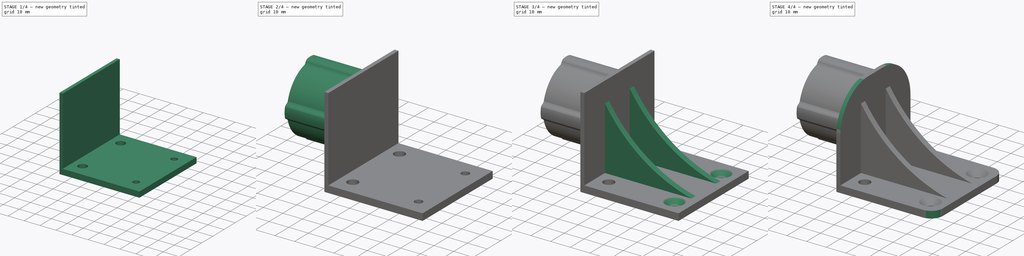
[diagram: build sequence overview — one tinted view per stage of 4, left to right]
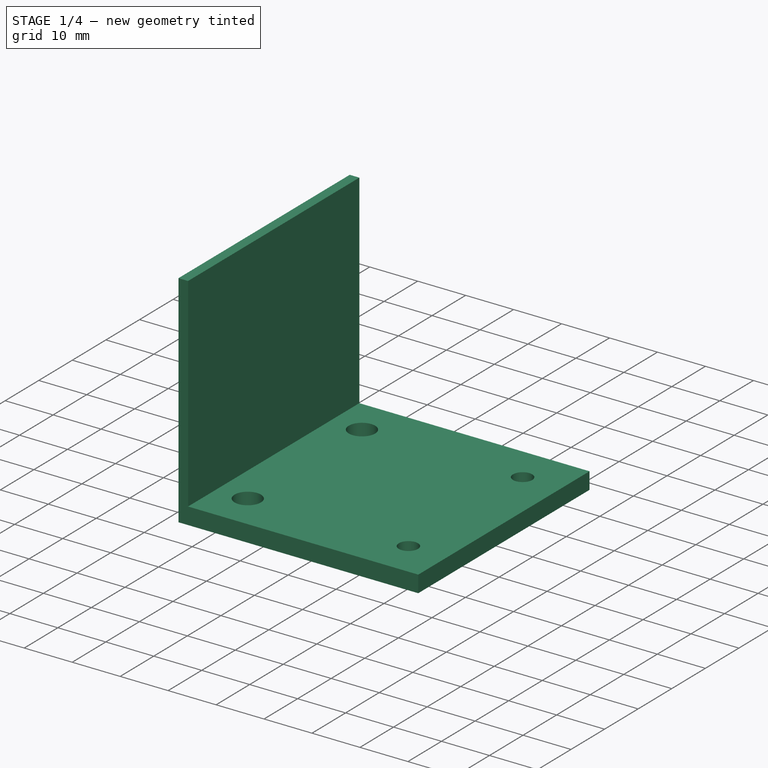
[diagram: stage 1 of 4 — iso view after this stage's code; geometry added in this stage tinted green]
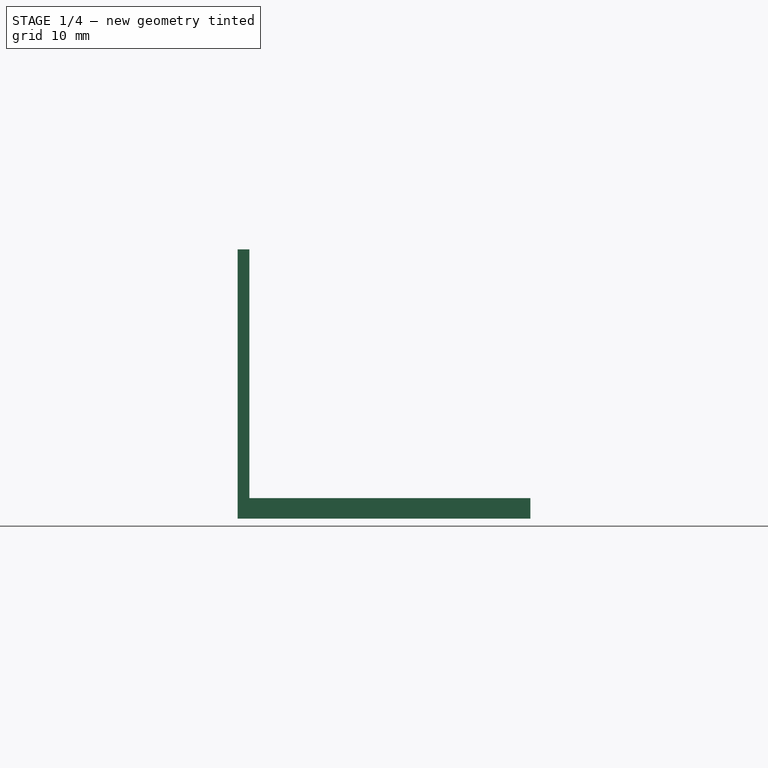
[diagram: stage 1 of 4 — front view after this stage's code; geometry added in this stage tinted green]
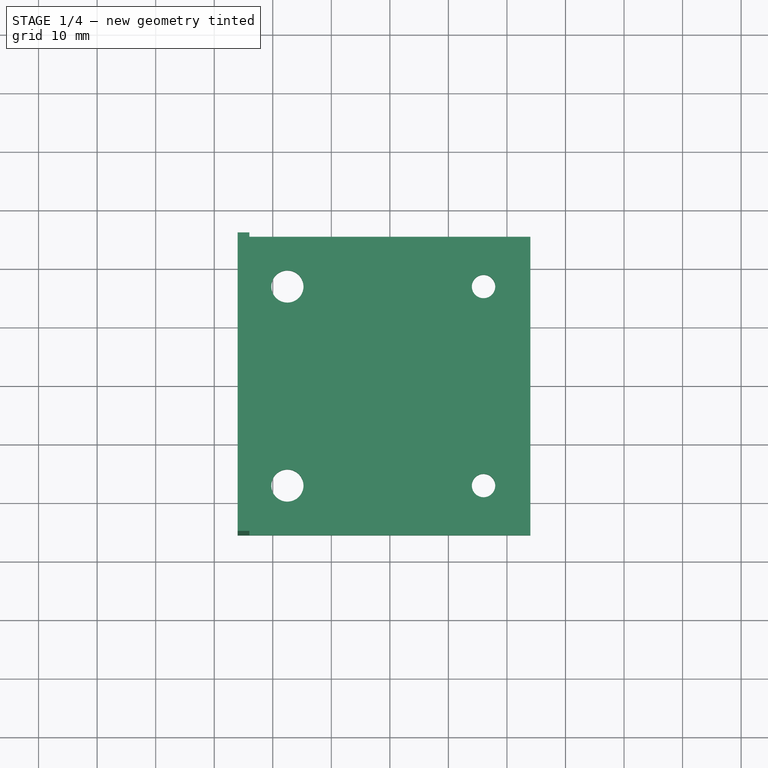
[diagram: stage 1 of 4 — top view after this stage's code; geometry added in this stage tinted green]
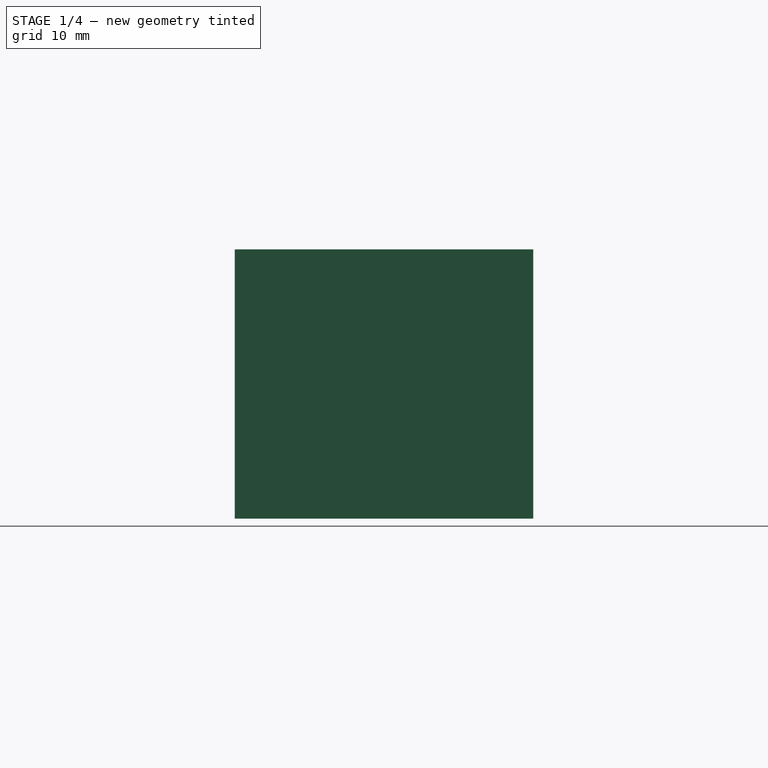
[diagram: stage 1 of 4 — right view after this stage's code; geometry added in this stage tinted green]
FCSTD DOCUMENT  (FreeCAD 0.21RUnknown)
Label: part5.2
License: All rights reserved
LicenseURL: https://en.wikipedia.org/wiki/All_rights_reserved
objects: App::MeasureDistance×6, Sketcher::SketchObject×4, PartDesign::Pad×4, Image::ImagePlane×3, PartDesign::Fillet×2, PartDesign::PolarPattern×1, PartDesign::Mirrored×1, PartDesign::Chamfer×1, PartDesign::Body×1
note: 21 computed .brp shape members not serialized (recipe doc carries the construction recipe); baked Part::Feature solids carry a one-line shape summary decoded from their .brp

FEATURE [Image::ImagePlane] Top
  Placement = pos=(-25.4,0.3,24.1) rot=(0.57735,-0.57735,-0.57735;2.0944rad)
  XSize = 142.346
  YSize = 94.5265
FEATURE [Image::ImagePlane] Base
  Placement = pos=(1.5,0,0.1) rot=(0,0,1;0.05236rad)
  XSize = 172.092
  YSize = 114.282
FEATURE [App::MeasureDistance] Distance  label="Distance: 47.43 mm"
  Distance = 47.4342
  P1 = (-24.0077,27.0864,0)
  P2 = (23.3693,24.7564,0)
FEATURE [Image::ImagePlane] side
  Placement = pos=(-44.4,5.3e-15,24) rot=(0,0.707107,0.707107;3.14159rad)
  XSize = 173.07
  YSize = 114.23
FEATURE [Sketcher::SketchObject] Sketch001
  FullyConstrained = true
  MapMode = 5
  Support = -> [XY_Plane]
  sketch-geometry (8):
    g0: LineSegment StartX=-24 StartY=25.5 StartZ=0 EndX=24 EndY=25.5 EndZ=0
    g1: LineSegment StartX=24 StartY=25.5 StartZ=0 EndX=24 EndY=-25.5 EndZ=0
    g2: LineSegment StartX=24 StartY=-25.5 StartZ=0 EndX=-24 EndY=-25.5 EndZ=0
    g3: LineSegment StartX=-24 StartY=-25.5 StartZ=0 EndX=-24 EndY=25.5 EndZ=0
    g4: Circle CenterX=-17.5 CenterY=17 CenterZ=0 NormalX=0 NormalY=0 NormalZ=1 AngleXU=0 Radius=2.75
    g5: Circle CenterX=16 CenterY=17 CenterZ=0 NormalX=0 NormalY=0 NormalZ=1 AngleXU=0 Radius=2
    g6: Circle CenterX=-17.5 CenterY=-17 CenterZ=0 NormalX=0 NormalY=0 NormalZ=1 AngleXU=0 Radius=2.75
    g7: Circle CenterX=16 CenterY=-17 CenterZ=0 NormalX=0 NormalY=0 NormalZ=1 AngleXU=0 Radius=2
  constraints (23):
    c: Coincident(g0,g1)
    c: Coincident(g1,g2)
    c: Coincident(g2,g3)
    c: Coincident(g3,g0)
    c: Horizontal(g0)
    c: Horizontal(g2)
    c: Vertical(g1)
    c: Vertical(g3)
    c: DistanceX(g0,g0) = 48
    c: DistanceY(g1,g1) = 51
    c: Symmetric(g2,g0,g-1)
    c: Horizontal(g5,g4)
    c: Diameter(g5) = 4
    c: Diameter(g4) = 5.5
    c: Diameter(g7) = 4
    c: Diameter(g6) = 5.5
    c: Horizontal(g6,g7)
    c: Vertical(g4,g6)
    c: Vertical(g5,g7)
    c: DistanceY(g4,g0) = 8.5
    c: DistanceX(g7,g1) = 8
    c: DistanceX(g0,g4) = 6.5
    c: DistanceY(g1,g7) = 8.5
FEATURE [App::MeasureDistance] Distance001  label="Distance: 1.87 mm"
  Distance = 1.87109
  P1 = (-24.8381,1.23957e-06,13.6017)
  P2 = (-26.7075,1.22989e-06,13.683)
FEATURE [App::MeasureDistance] Distance002  label="Distance: 3.66 mm"
  Distance = 3.65989
  P1 = (-22.6962,2.96178e-06,-0.845215)
  P2 = (-22.5607,2.52579e-06,2.81216)
FEATURE [App::MeasureDistance] Distance003  label="Distance: 45.27 mm"
  Distance = 45.2652
  P1 = (-26.3729,2.97323e-06,-0.941296)
  P2 = (-27.0504,-2.4222e-06,44.3189)
FEATURE [App::MeasureDistance] Distance004  label="Distance: 25.81 mm"
  Distance = 25.8146
  P1 = (-52.9513,-2.16964e-07,25.82)
  P2 = (-27.1368,-2.08887e-07,25.7523)
FEATURE [PartDesign::Pad] Pad
  Direction = (0,0,1)
  Length = 3.5
  Length2 = 10
  Profile = -> Sketch001
  ReferenceAxis = -> Sketch001 [N_Axis]
  Type = 0
FEATURE [Sketcher::SketchObject] Sketch002
  ExternalGeometry = -> [Pad]
  FullyConstrained = true
  MapMode = 5
  Placement = pos=(-24,0,0) rot=(0.57735,-0.57735,-0.57735;2.0944rad)
  Support = -> [Pad]
  sketch-geometry (4):
    g0: LineSegment StartX=-25.5 StartY=0 StartZ=0 EndX=25.5 EndY=0 EndZ=0
    g1: LineSegment StartX=25.5 StartY=0 StartZ=0 EndX=25.5 EndY=46 EndZ=0
    g2: LineSegment StartX=25.5 StartY=46 StartZ=0 EndX=-25.5 EndY=46 EndZ=0
    g3: LineSegment StartX=-25.5 StartY=46 StartZ=0 EndX=-25.5 EndY=0 EndZ=0
  constraints (10):
    c: Coincident(g0,g1)
    c: Coincident(g1,g2)
    c: Coincident(g2,g3)
    c: Coincident(g3,g0)
    c: Horizontal(g2)
    c: Vertical(g1)
    c: Vertical(g3)
    c: Coincident(g0,g-4)
    c: Coincident(g0,g-3)
    c: DistanceY(g1,g1) = 46
FEATURE [PartDesign::Pad] Pad001
  BaseFeature = -> Pad
  Direction = (-1,0,0)
  Length = 2
  Length2 = 10
  Profile = -> Sketch002
  ReferenceAxis = -> Sketch002 [N_Axis]
  Type = 0
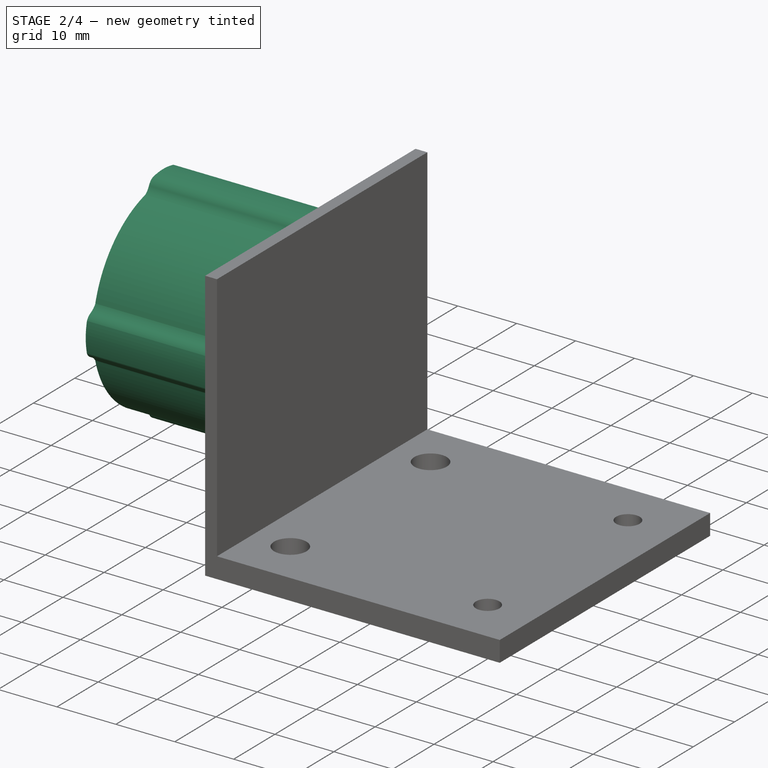
[diagram: stage 2 of 4 — iso view after this stage's code; geometry added in this stage tinted green]
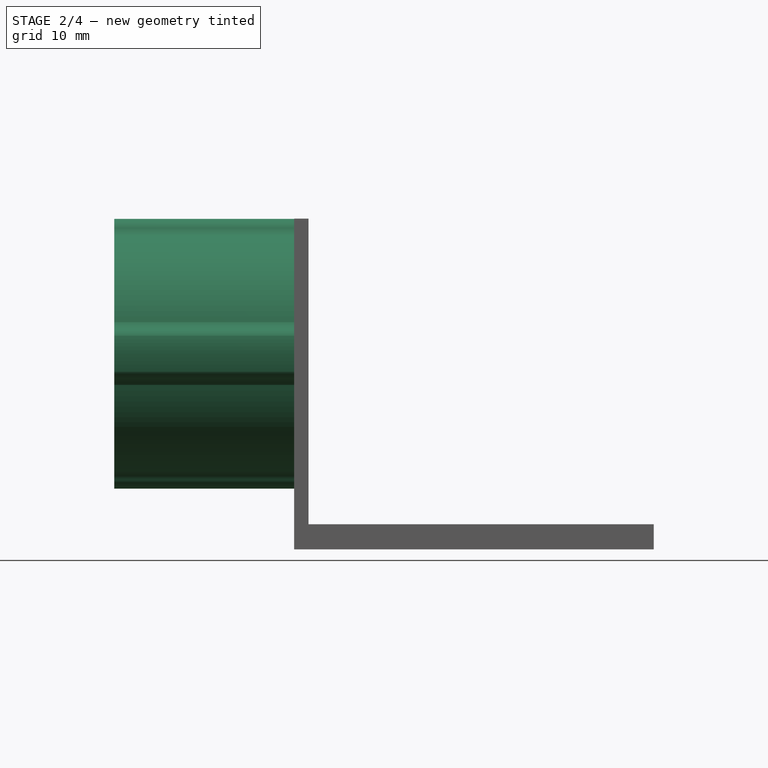
[diagram: stage 2 of 4 — front view after this stage's code; geometry added in this stage tinted green]
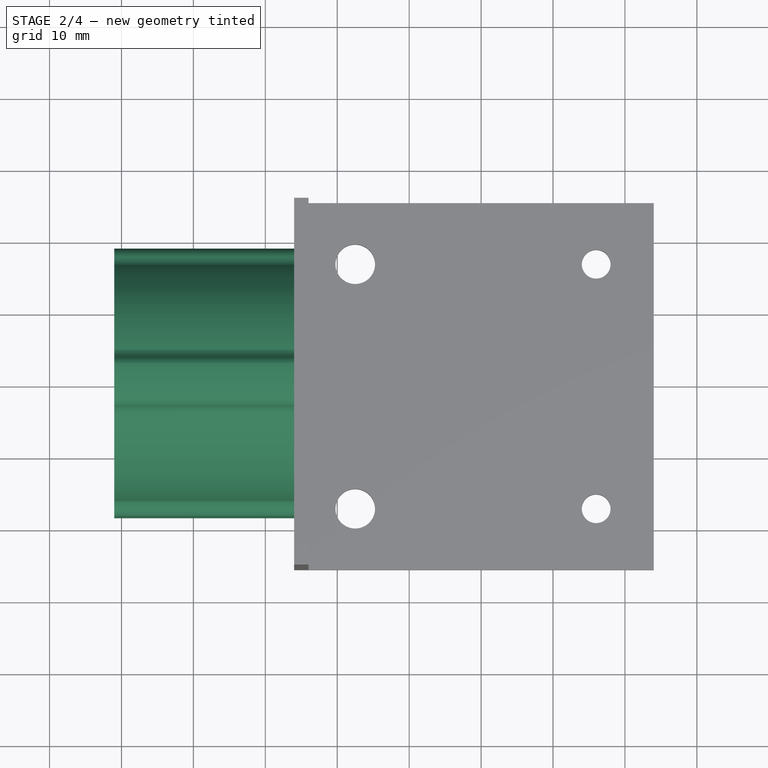
[diagram: stage 2 of 4 — top view after this stage's code; geometry added in this stage tinted green]
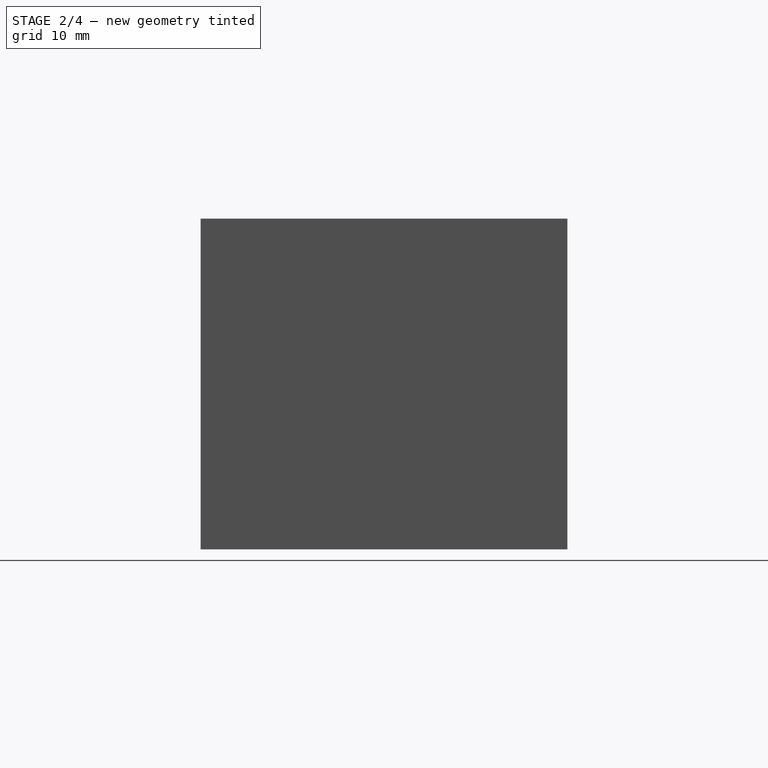
[diagram: stage 2 of 4 — right view after this stage's code; geometry added in this stage tinted green]
FEATURE [Sketcher::SketchObject] Sketch
  AttachmentOffset = pos=(0,27.2,0) rot=(0,0,1;0rad)
  FullyConstrained = true
  MapMode = 5
  Placement = pos=(-26,0,27.2) rot=(0.57735,-0.57735,-0.57735;2.0944rad)
  Support = -> [Pad001]
  sketch-geometry (15):
    g0: LineSegment StartX=0 StartY=0 StartZ=0 EndX=-4.39519 EndY=16.4031 EndZ=0
    g1: LineSegment StartX=0 StartY=0 StartZ=0 EndX=16.4207 EndY=4.39992 EndZ=0
    g2: ArcOfCircle CenterX=0 CenterY=0 CenterZ=0 NormalX=0 NormalY=0 NormalZ=1 AngleXU=0 Radius=17 StartAngle=0.261799 EndAngle=1.3125
    g3: ArcOfCircle CenterX=0 CenterY=0 CenterZ=0 NormalX=0 NormalY=0 NormalZ=1 AngleXU=0 Radius=15 StartAngle=0.261799 EndAngle=1.46393
    g4: LineSegment StartX=-4.39519 StartY=16.4031 StartZ=0 EndX=-3.88229 EndY=14.4889 EndZ=0
    g5: LineSegment StartX=16.4207 StartY=4.39992 StartZ=0 EndX=14.4889 EndY=3.88229 EndZ=0
    g6: ArcOfCircle CenterX=-5.69269 CenterY=18.54 CenterZ=0 NormalX=0 NormalY=0 NormalZ=1 AngleXU=0 Radius=2.5 StartAngle=5.25807 EndAngle=5.85444
    g7: ArcOfCircle CenterX=-1.6 CenterY=16.6692 CenterZ=0 NormalX=0 NormalY=0 NormalZ=1 AngleXU=0 Radius=2 StartAngle=2.03756 EndAngle=2.71284
    g8: ArcOfCircle CenterX=-3.1e-15 CenterY=8 CenterZ=0 NormalX=0 NormalY=0 NormalZ=1 AngleXU=0 Radius=10.75 StartAngle=1.33609 EndAngle=1.8055
    g9: ArcOfCircle CenterX=1.6 CenterY=16.6692 CenterZ=0 NormalX=0 NormalY=0 NormalZ=1 AngleXU=0 Radius=2 StartAngle=0.428748 EndAngle=1.10403
    g10: ArcOfCircle CenterX=5.69269 CenterY=18.54 CenterZ=0 NormalX=0 NormalY=0 NormalZ=1 AngleXU=0 Radius=2.5 StartAngle=3.57034 EndAngle=4.14179
    g11: LineSegment StartX=-1.6 StartY=16.9245 StartZ=0 EndX=-1.6 EndY=14.9144 EndZ=0
    g12: LineSegment StartX=1.6 StartY=16.9245 StartZ=0 EndX=1.6 EndY=14.9144 EndZ=0
    g13: ArcOfCircle CenterX=0 CenterY=0 CenterZ=0 NormalX=0 NormalY=0 NormalZ=1 AngleXU=0 Radius=15 StartAngle=1.67767 EndAngle=1.8326
    g14: ArcOfCircle CenterX=0 CenterY=0 CenterZ=0 NormalX=0 NormalY=0 NormalZ=1 AngleXU=0 Radius=17 StartAngle=1.47654 EndAngle=1.66505
  constraints (43):
    c: Coincident(g0,g-1)
    c: Coincident(g1,g0)
    c: Angle(g1,g0) = 1.5708
    c: Coincident(g2,g0)
    c: Coincident(g2,g1)
    c: PointOnObject(g13,g0)
    c: PointOnObject(g3,g1)
    c: Coincident(g4,g0)
    c: Coincident(g4,g13)
    c: Coincident(g5,g2)
    c: Coincident(g5,g3)
    c: Radius(g2) = 17
    c: Radius(g3) = 15
    c: Angle(g-1,g1) = 0.261799
    c: Coincident(g3,g2)
    c: Coincident(g6,g0)
    c: Coincident(g8,g7)
    c: Coincident(g9,g8)
    c: Tangent(g7,g6) = 1.5708
    c: Tangent(g10,g9) = 1.5708
    c: DistanceY(g2,g8) = 8
    c: Symmetric(g7,g8,g-2)
    c: Symmetric(g9,g7,g-2)
    c: Symmetric(g6,g10,g-2)
    c: Radius(g6) = 2.5
    c: Radius(g7) = 2
    c: Radius(g8) = 10.75
    c: DistanceX(g7,g9) = 3.2
    c: DistanceX(g7,g8) = 5
    c: Vertical(g11)
    c: Vertical(g12)
    c: Symmetric(g11,g12,g-2)
    c: PointOnObject(g7,g11)
    c: Coincident(g14,g11)
    c: DistanceY(g2,g6) = 18.54
    c: Equal(g3,g13)
    c: PointOnObject(g3,g12)
    c: Coincident(g13,g11)
    c: Coincident(g3,g13)
    c: Equal(g2,g14)
    c: Coincident(g2,g10)
    c: Coincident(g14,g12)
    c: Coincident(g2,g14)
FEATURE [PartDesign::Pad] Pad002
  BaseFeature = -> Pad001
  Direction = (-1,0,0)
  Length = 25
  Length2 = 10
  Profile = -> Sketch
  ReferenceAxis = -> Sketch [N_Axis]
  Type = 0
FEATURE [PartDesign::PolarPattern] PolarPattern
  Angle = 360
  Axis = -> Sketch [N_Axis]
  BaseFeature = -> Pad002
  Occurrences = 4
  Originals = -> [Pad002]
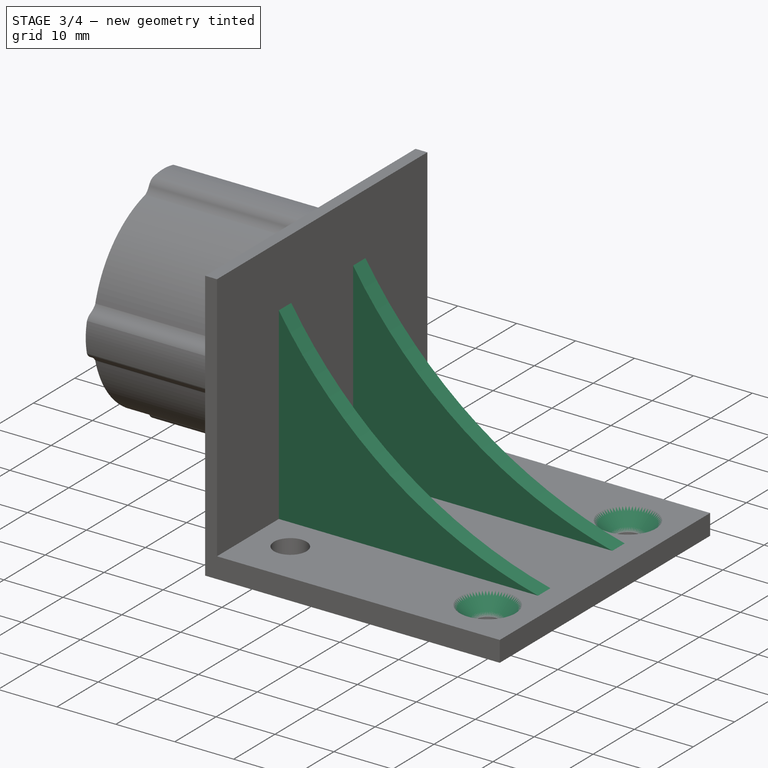
[diagram: stage 3 of 4 — iso view after this stage's code; geometry added in this stage tinted green]
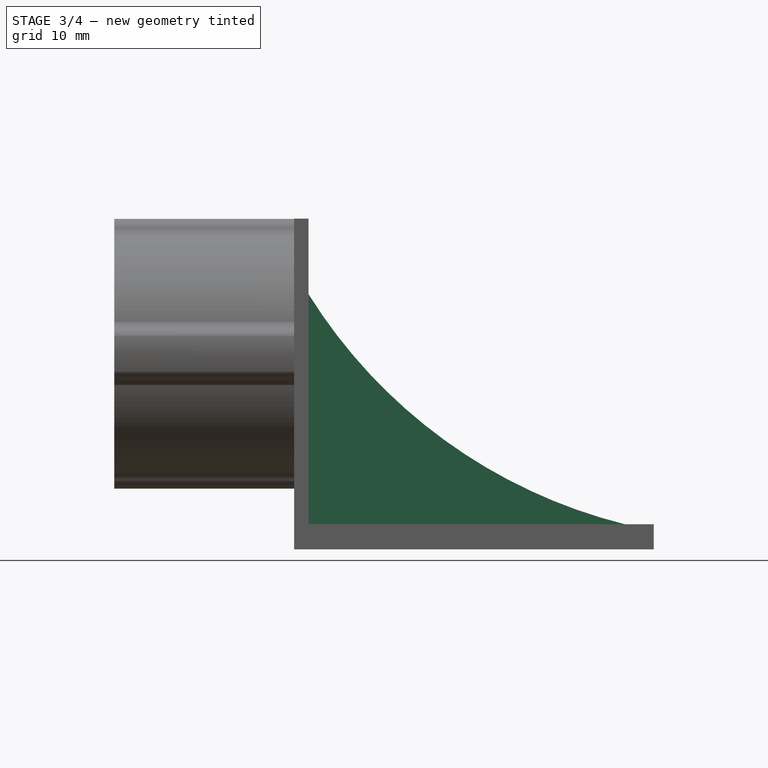
[diagram: stage 3 of 4 — front view after this stage's code; geometry added in this stage tinted green]
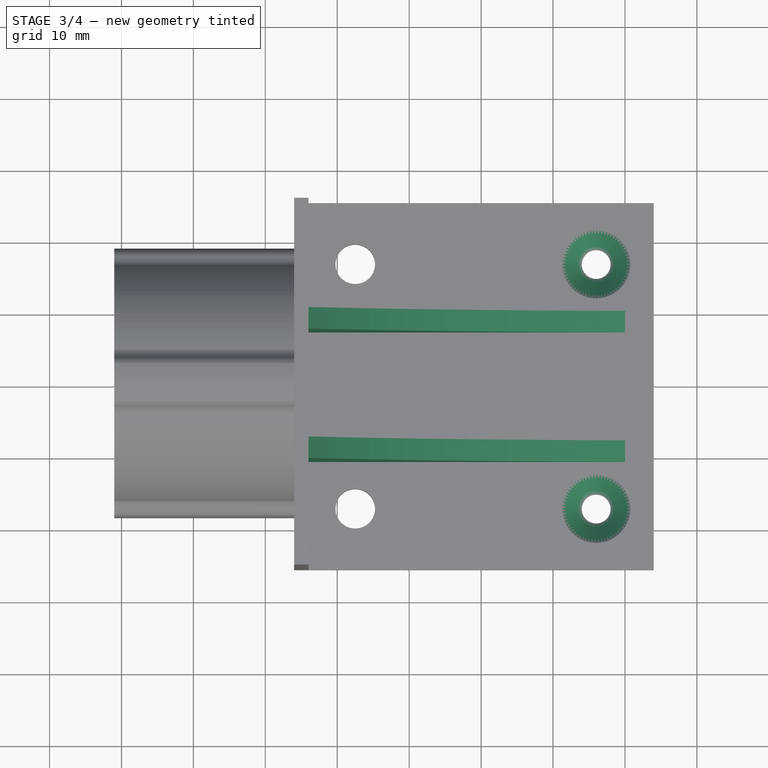
[diagram: stage 3 of 4 — top view after this stage's code; geometry added in this stage tinted green]
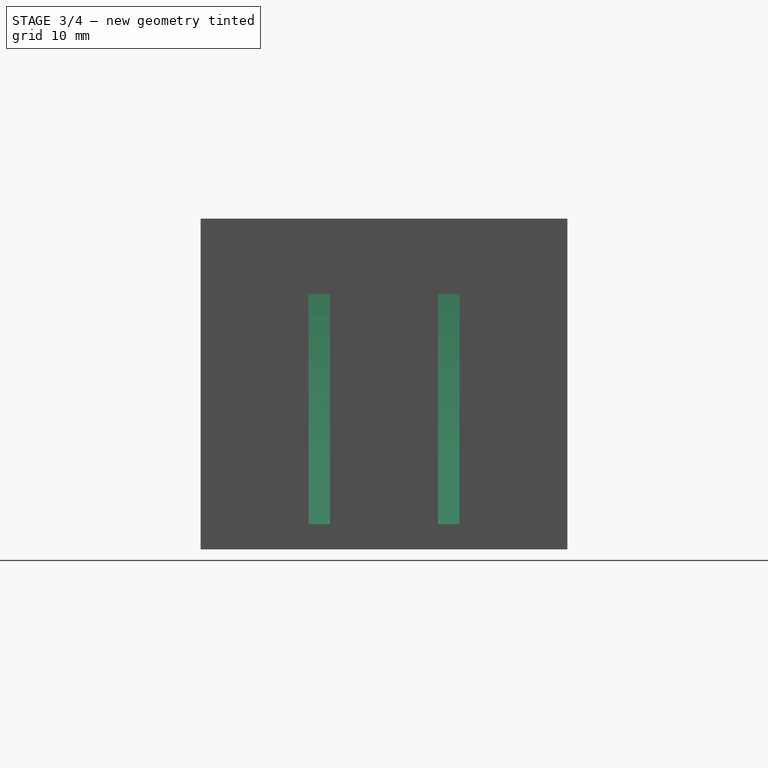
[diagram: stage 3 of 4 — right view after this stage's code; geometry added in this stage tinted green]
FEATURE [Sketcher::SketchObject] Sketch003
  AttachmentOffset = pos=(0,0,-18) rot=(0,0,1;0rad)
  ExternalGeometry = -> [PolarPattern]
  FullyConstrained = true
  MapMode = 5
  Placement = pos=(0,7.5,4e-15) rot=(0,0.707107,0.707107;3.14159rad)
  Support = -> [PolarPattern]
  sketch-geometry (3):
    g0: ArcOfCircle CenterX=-37.5269 CenterY=73.8495 CenterZ=0 NormalX=0 NormalY=0 NormalZ=1 AngleXU=0 Radius=72.5 StartAngle=4.95656 EndAngle=5.72581
    g1: LineSegment StartX=24 StartY=35.5 StartZ=0 EndX=24 EndY=3.5 EndZ=0
    g2: LineSegment StartX=24 StartY=3.5 StartZ=0 EndX=-20 EndY=3.5 EndZ=0
  constraints (9):
    c: PointOnObject(g0,g-3)
    c: PointOnObject(g0,g-4)
    c: Coincident(g0,g1)
    c: Coincident(g1,g2)
    c: Coincident(g2,g0)
    c: DistanceY(g1,g1) = 32
    c: DistanceX(g2,g2) = 44
    c: Radius(g0) = 72.5
    c: Coincident(g1,g-4)
FEATURE [PartDesign::Pad] Pad003
  BaseFeature = -> PolarPattern
  Direction = (0,1,-2e-16)
  Length = 3
  Length2 = 10
  Profile = -> Sketch003
  ReferenceAxis = -> Sketch003 [N_Axis]
  Type = 0
FEATURE [PartDesign::Mirrored] Mirrored
  BaseFeature = -> Pad003
  MirrorPlane = -> XZ_Plane
  Originals = -> [Pad003]
FEATURE [App::MeasureDistance] Distance005  label="Distance: 2.60 mm"
  Distance = 2.59557
  P1 = (13.2984,16.5625,3.5)
  P2 = (10.7035,16.5068,3.5)
FEATURE [PartDesign::Chamfer] Chamfer
  Angle = 45
  Base = -> Mirrored [Edge29,Edge31]
  BaseFeature = -> Mirrored
  ChamferType = 0
  FlipDirection = false
  Size = 2.75
  Size2 = 1
  SupportTransform = false
  UseAllEdges = false
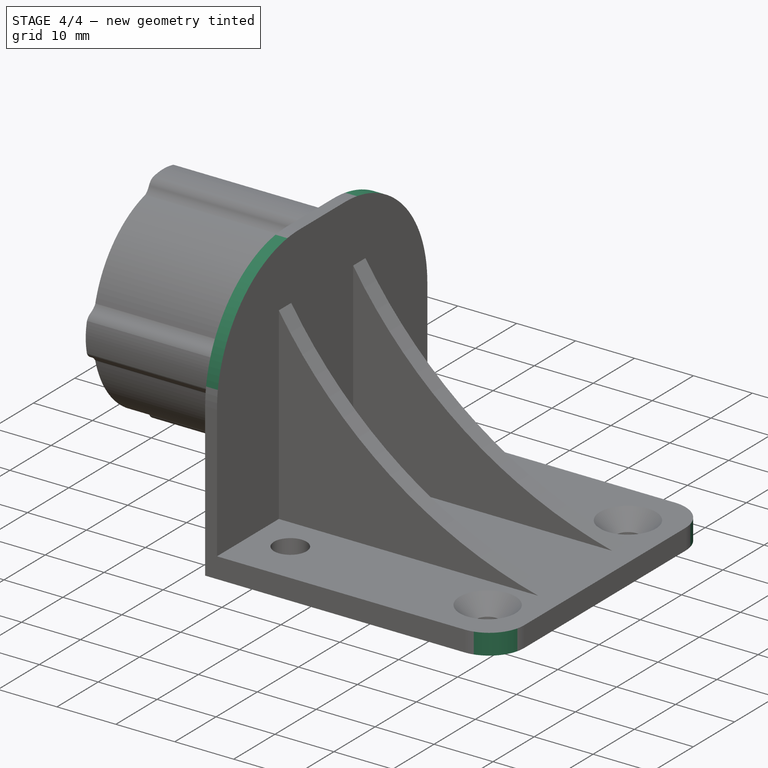
[diagram: stage 4 of 4 — iso view after this stage's code; geometry added in this stage tinted green]
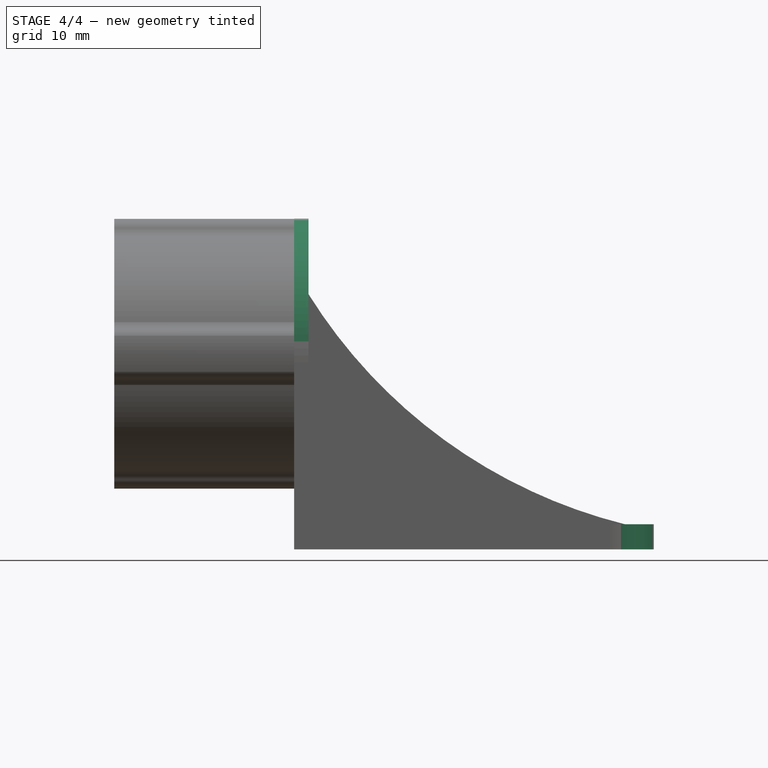
[diagram: stage 4 of 4 — front view after this stage's code; geometry added in this stage tinted green]
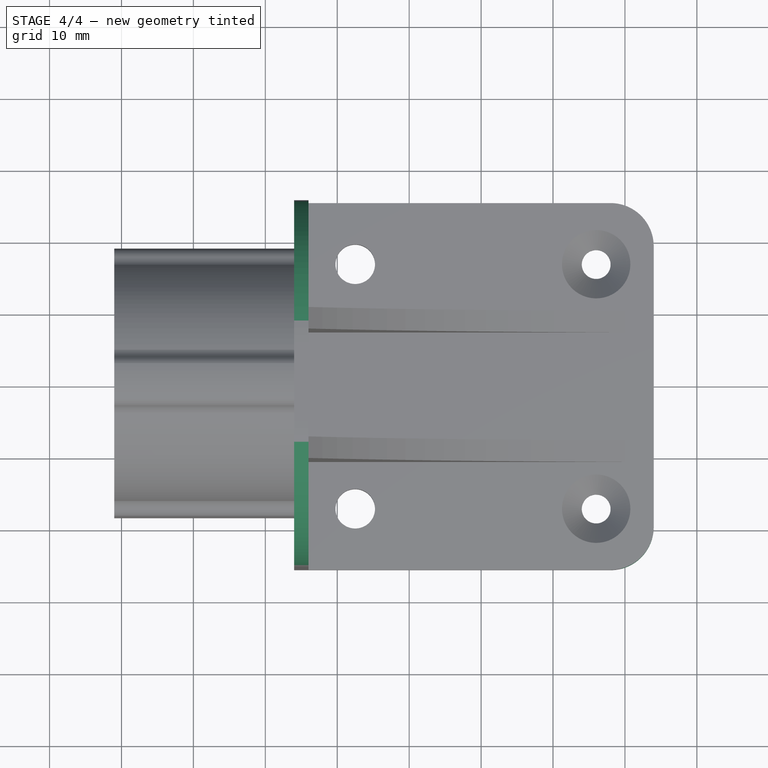
[diagram: stage 4 of 4 — top view after this stage's code; geometry added in this stage tinted green]
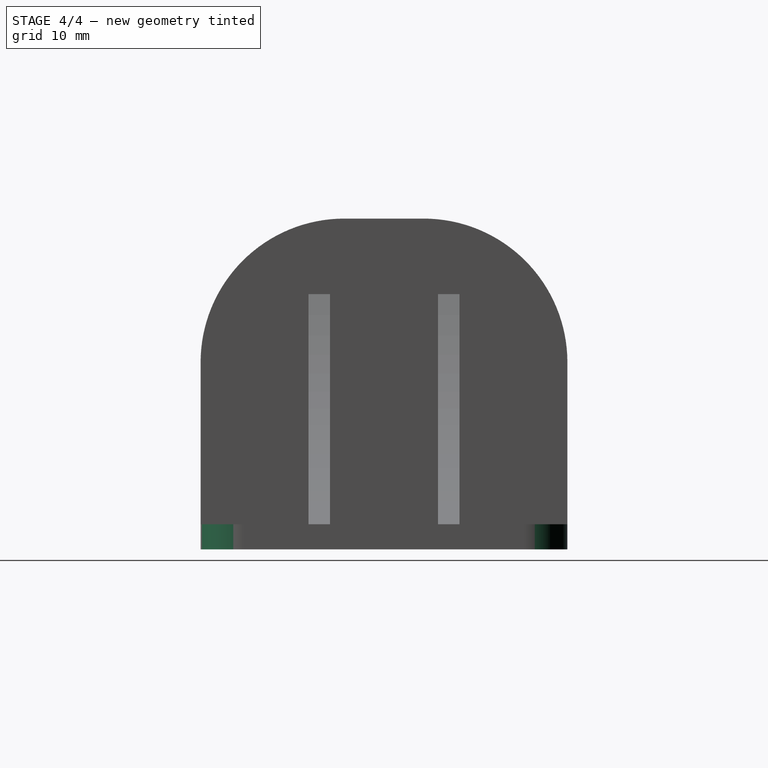
[diagram: stage 4 of 4 — right view after this stage's code; geometry added in this stage tinted green]
FEATURE [PartDesign::Fillet] Fillet
  Base = -> Chamfer [Edge22,Edge20]
  BaseFeature = -> Chamfer
  Radius = 6
  SupportTransform = false
  UseAllEdges = false
FEATURE [PartDesign::Fillet] Fillet001
  Base = -> Fillet [Edge58,Edge54]
  BaseFeature = -> Fillet
  Radius = 20
  SupportTransform = false
  UseAllEdges = false
FEATURE [PartDesign::Body] Body
  Group = -> [Sketch,Sketch001,Pad,Sketch002,Pad001,Pad002,PolarPattern,Sketch003,Pad003,Mirrored,Chamfer,Fillet,Fillet001]
  Origin = -> Origin
  Tip = -> Fillet001
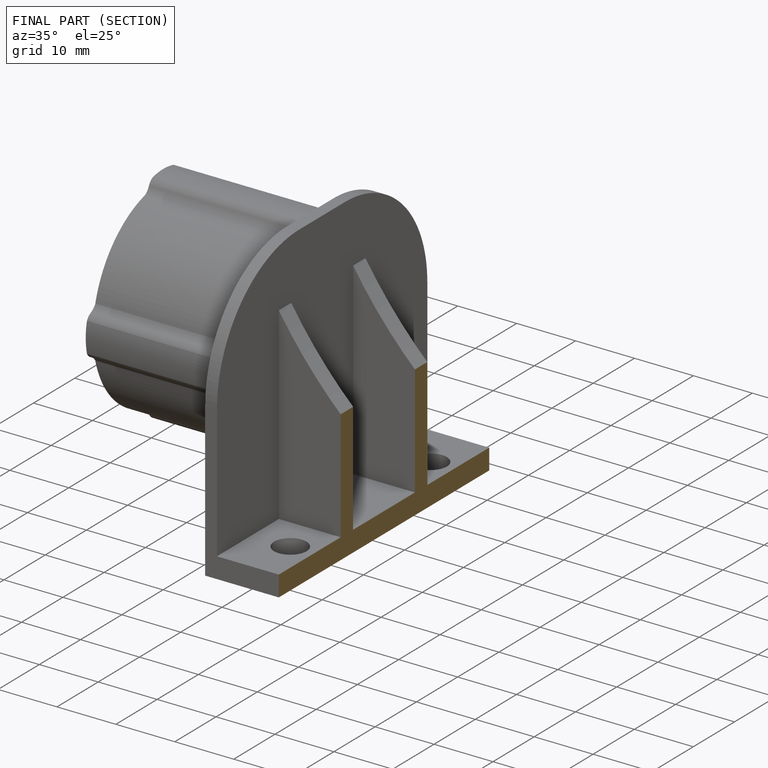
[diagram: finished part — half-section view (interior)]
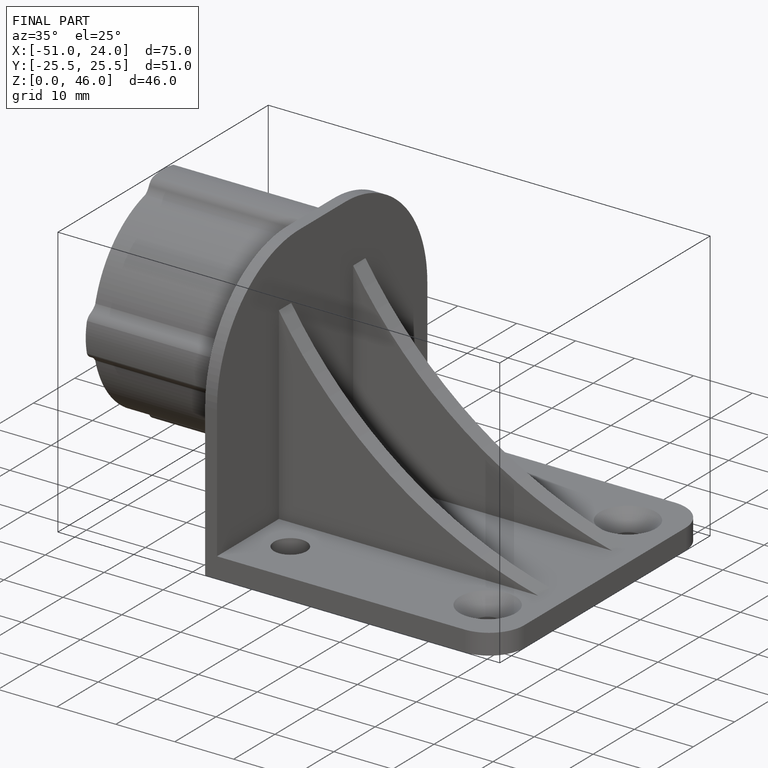
[diagram: finished part — iso view with bounding-box wireframe]
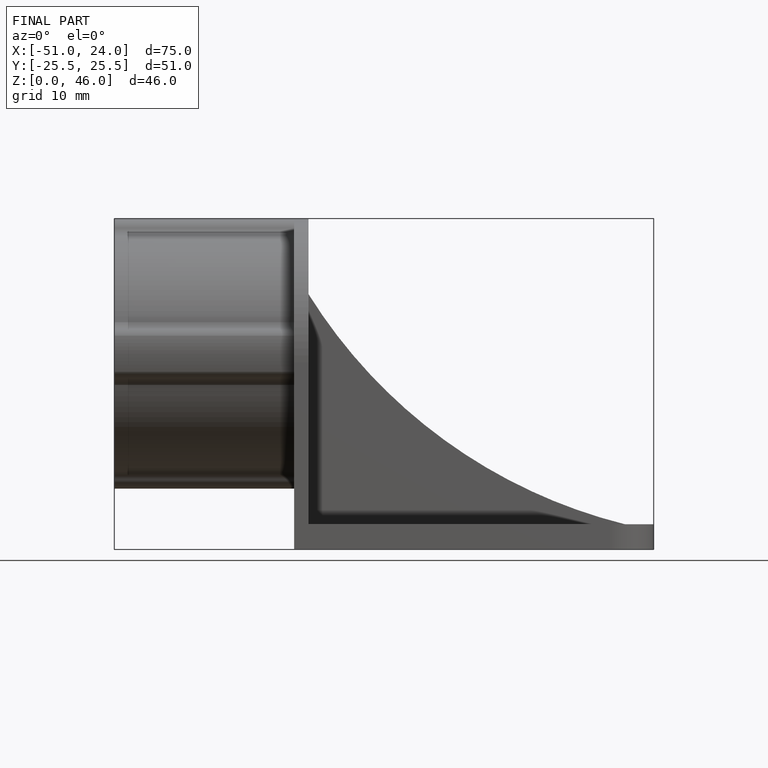
[diagram: finished part — front view with bounding-box wireframe]
